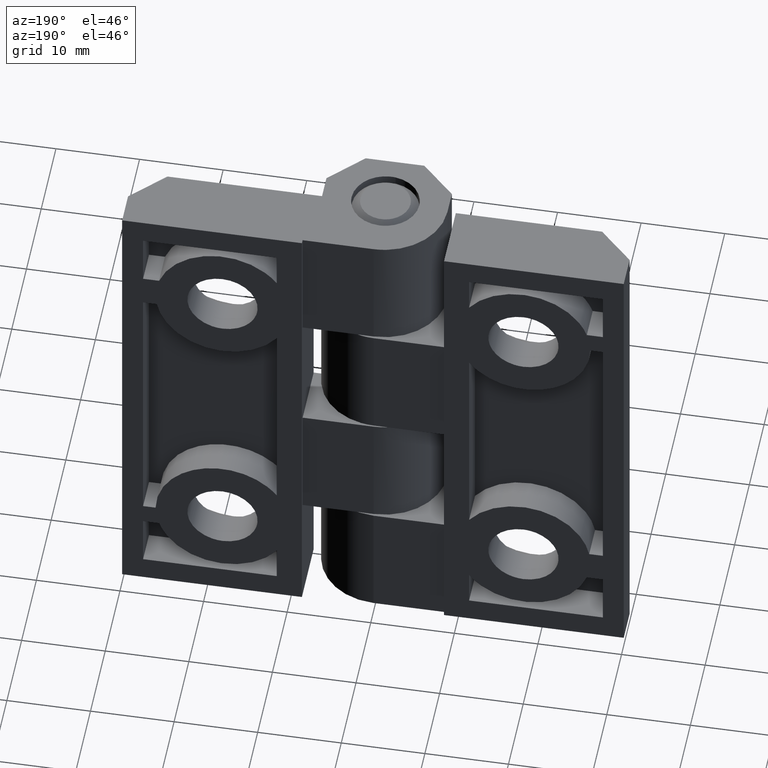
[diagram: clean part render]
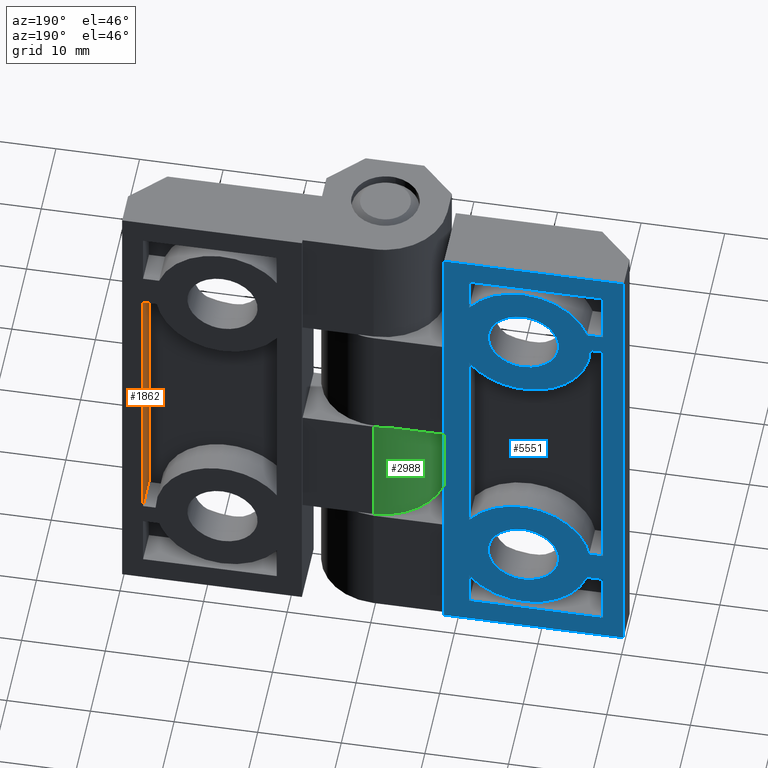
[diagram: same view with three faces highlighted in distinct colors, each labeled with its STEP entity id]
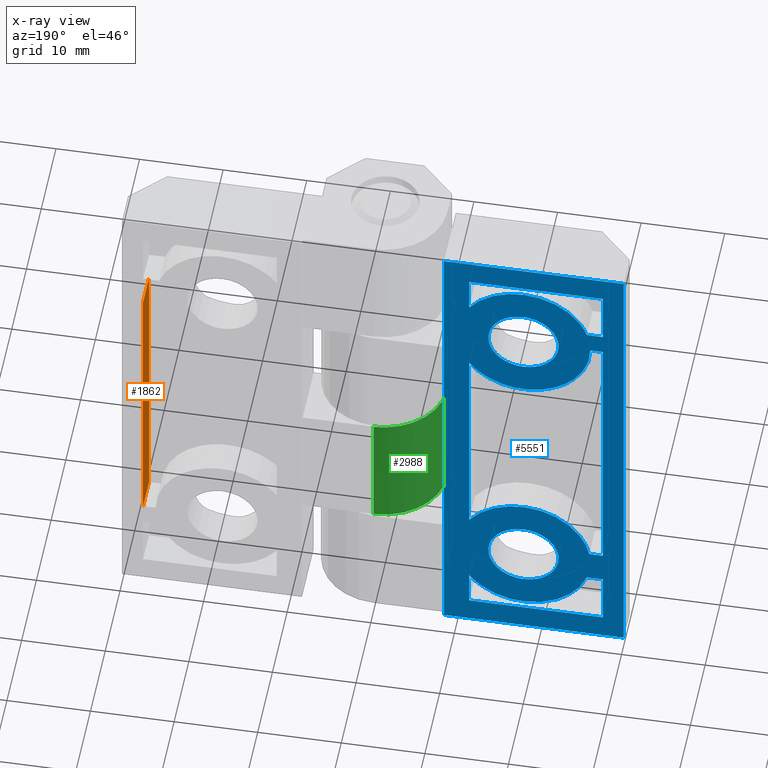
[diagram: x-ray of the same camera — body ghosted, the three highlighted faces saturated]
A machine part, auxiliary view with three faces highlighted in distinct colors.
The next image is the same camera in x-ray (body ghosted, the three faces saturated) — at least one of them is partly hidden behind the body in this view.
Their STEP definitions:

[orange] entity #1862 — the highlighted face is a freeform B-spline surface patch.
#1638=CARTESIAN_POINT('',(27.500002731103400,4.500000403728330,46.548002210911399));
#1639=VERTEX_POINT('',#1638);
#1645=CARTESIAN_POINT('',(27.500002731103400,4.500000403728330,12.000000569969460));
#1646=VERTEX_POINT('',#1645);
#1647=CARTESIAN_POINT('',(27.500002731103400,4.500000403728330,46.548002210911399));
#1648=CARTESIAN_POINT('',(27.500002731103400,4.500000403728330,12.000000569969460));
#1649=QUASI_UNIFORM_CURVE('',1,(#1647,#1648),.UNSPECIFIED.,.F.,.U.);
#1650=EDGE_CURVE('',#1639,#1646,#1649,.T.);
#1824=CARTESIAN_POINT('',(27.500002731103400,8.500000403728341,12.000000569969460));
#1825=VERTEX_POINT('',#1824);
#1833=CARTESIAN_POINT('',(27.500002731103400,4.500000403728330,12.000000569969460));
#1834=CARTESIAN_POINT('',(27.500002731103400,8.500000403728341,12.000000569969460));
#1835=QUASI_UNIFORM_CURVE('',1,(#1833,#1834),.UNSPECIFIED.,.F.,.U.);
#1836=EDGE_CURVE('',#1646,#1825,#1835,.T.);
#1841=CARTESIAN_POINT('',(27.500002731103400,4.300200515161000,48.273672880044202));
#1842=CARTESIAN_POINT('',(27.500002731103400,4.300200515161000,10.274327120887820));
#1843=CARTESIAN_POINT('',(27.500002731103400,8.699799898905019,48.273672880044202));
#1844=CARTESIAN_POINT('',(27.500002731103400,8.699799898905019,10.274327120887820));
#1845=B_SPLINE_SURFACE_WITH_KNOTS('',1,1,((#1841,#1843),(#1842,#1844)),.UNSPECIFIED.,.F.,.F.,.U.,(2,2),(2,2),(0.0,37.999345759156377),(0.0,4.399599383744018),.UNSPECIFIED.);
#1846=CARTESIAN_POINT('',(27.500002731103400,8.500000403728341,46.548002210911399));
#1847=VERTEX_POINT('',#1846);
#1848=CARTESIAN_POINT('',(27.500002731103400,8.500000403728341,46.548002210911399));
#1849=CARTESIAN_POINT('',(27.500002731103400,8.500000403728341,12.000000569969460));
#1850=QUASI_UNIFORM_CURVE('',1,(#1848,#1849),.UNSPECIFIED.,.F.,.U.);
#1851=EDGE_CURVE('',#1847,#1825,#1850,.T.);
#1852=ORIENTED_EDGE('',*,*,#1851,.T.);
#1853=ORIENTED_EDGE('',*,*,#1836,.F.);
#1854=ORIENTED_EDGE('',*,*,#1650,.F.);
#1855=CARTESIAN_POINT('',(27.500002731103400,4.500000403728330,46.548002210911399));
#1856=CARTESIAN_POINT('',(27.500002731103400,8.500000403728341,46.548002210911399));
#1857=QUASI_UNIFORM_CURVE('',1,(#1855,#1856),.UNSPECIFIED.,.F.,.U.);
#1858=EDGE_CURVE('',#1639,#1847,#1857,.T.);
#1859=ORIENTED_EDGE('',*,*,#1858,.T.);
#1860=EDGE_LOOP('',(#1852,#1853,#1854,#1859));
#1861=FACE_OUTER_BOUND('',#1860,.T.);
#1862=ADVANCED_FACE('',(#1861),#1845,.F.);

[blue] entity #5551 — the highlighted face is a freeform B-spline surface patch.
#3131=CARTESIAN_POINT('',(-19.476793066671860,8.500000403728341,51.931804163555412));
#3132=VERTEX_POINT('',#3131);
#3138=CARTESIAN_POINT('',(-17.999998005107098,8.500000403728341,52.200001054443433));
#3139=VERTEX_POINT('',#3138);
#3140=CARTESIAN_POINT('',(-19.476793066671863,8.500000403728341,51.931804163555405));
#3141=CARTESIAN_POINT('',(-18.762748804044932,8.500000403728341,52.200001054443440));
#3142=CARTESIAN_POINT('',(-17.999998005107098,8.500000403728341,52.200001054443433));
#3150=(BOUNDED_CURVE()B_SPLINE_CURVE(2,(#3140,#3141,#3142),.UNSPECIFIED.,.F.,.U.)B_SPLINE_CURVE_WITH_KNOTS((3,3),(0.940284170898521,1.0),.UNSPECIFIED.)CURVE()GEOMETRIC_REPRESENTATION_ITEM()RATIONAL_B_SPLINE_CURVE((0.893499554635290,0.930038554401415,1.0))REPRESENTATION_ITEM(''));
#3151=EDGE_CURVE('',#3132,#3139,#3150,.T.);
#3153=CARTESIAN_POINT('',(-17.999998005107098,8.500000403728341,43.800003505311778));
#3154=VERTEX_POINT('',#3153);
#3155=CARTESIAN_POINT('',(-17.999998005107098,8.500000403728341,52.200001054443433));
#3156=CARTESIAN_POINT('',(-13.799999230541273,8.500000403728341,52.200001054443426));
#3157=CARTESIAN_POINT('',(-13.799999230541280,8.500000403728341,48.000002279877599));
#3158=CARTESIAN_POINT('',(-13.799999230541273,8.500000403728341,43.800003505311778));
#3159=CARTESIAN_POINT('',(-17.999998005107098,8.500000403728341,43.800003505311778));
#3167=(BOUNDED_CURVE()B_SPLINE_CURVE(2,(#3155,#3156,#3157,#3158,#3159),.UNSPECIFIED.,.F.,.U.)B_SPLINE_CURVE_WITH_KNOTS((3,2,3),(0.0,0.250000000000000,0.500000000000000),.UNSPECIFIED.)CURVE()GEOMETRIC_REPRESENTATION_ITEM()RATIONAL_B_SPLINE_CURVE((1.0,0.707106781186547,1.0,0.707106781186547,1.0))REPRESENTATION_ITEM(''));
#3168=EDGE_CURVE('',#3139,#3154,#3167,.T.);
#3170=CARTESIAN_POINT('',(-22.192162935328820,8.500000403728341,47.743598488615532));
#3171=VERTEX_POINT('',#3170);
#3172=CARTESIAN_POINT('',(-17.999998005107098,8.500000403728341,43.800003505311778));
#3173=CARTESIAN_POINT('',(-21.950962333287343,8.500000403728341,43.800003505311778));
#3174=CARTESIAN_POINT('',(-22.192162935328820,8.500000403728341,47.743598488615532));
#3182=(BOUNDED_CURVE()B_SPLINE_CURVE(2,(#3172,#3173,#3174),.UNSPECIFIED.,.F.,.U.)B_SPLINE_CURVE_WITH_KNOTS((3,3),(0.500000000000000,0.739332962239776),.UNSPECIFIED.)CURVE()GEOMETRIC_REPRESENTATION_ITEM()RATIONAL_B_SPLINE_CURVE((1.0,0.719603993285735,0.976072041668502))REPRESENTATION_ITEM(''));
#3183=EDGE_CURVE('',#3154,#3171,#3182,.T.);
#3285=CARTESIAN_POINT('',(-22.192162935328813,8.500000403728341,47.743598488615540));
#3286=CARTESIAN_POINT('',(-22.199996779672926,8.500000403728341,47.871680711437229));
#3287=CARTESIAN_POINT('',(-22.199996779672919,8.500000403728341,48.000002279877599));
#3288=CARTESIAN_POINT('',(-22.199996779672929,8.500000403728341,50.908961733039057));
#3289=CARTESIAN_POINT('',(-19.476793066671863,8.500000403728341,51.931804163555412));
#3297=(BOUNDED_CURVE()B_SPLINE_CURVE(2,(#3285,#3286,#3287,#3288,#3289),.UNSPECIFIED.,.F.,.U.)B_SPLINE_CURVE_WITH_KNOTS((3,2,3),(0.739332962239776,0.750000000000000,0.940284170898520),.UNSPECIFIED.)CURVE()GEOMETRIC_REPRESENTATION_ITEM()RATIONAL_B_SPLINE_CURVE((0.976072041668504,0.987502787900814,1.0,0.777068226785133,0.893499554635289))REPRESENTATION_ITEM(''));
#3298=EDGE_CURVE('',#3171,#3132,#3297,.T.);
#3471=CARTESIAN_POINT('',(-19.476793066671860,8.500000403728341,15.931804163555491));
#3472=VERTEX_POINT('',#3471);
#3478=CARTESIAN_POINT('',(-17.999998005107098,8.500000403728341,16.200001054443511));
#3479=VERTEX_POINT('',#3478);
#3480=CARTESIAN_POINT('',(-19.476793066671863,8.500000403728341,15.931804163555485));
#3481=CARTESIAN_POINT('',(-18.762748804044932,8.500000403728341,16.200001054443504));
#3482=CARTESIAN_POINT('',(-17.999998005107098,8.500000403728341,16.200001054443511));
#3490=(BOUNDED_CURVE()B_SPLINE_CURVE(2,(#3480,#3481,#3482),.UNSPECIFIED.,.F.,.U.)B_SPLINE_CURVE_WITH_KNOTS((3,3),(0.940284170898521,1.0),.UNSPECIFIED.)CURVE()GEOMETRIC_REPRESENTATION_ITEM()RATIONAL_B_SPLINE_CURVE((0.893499554635290,0.930038554401415,1.0))REPRESENTATION_ITEM(''));
#3491=EDGE_CURVE('',#3472,#3479,#3490,.T.);
#3493=CARTESIAN_POINT('',(-17.999998005107098,8.500000403728341,7.800003505311856));
#3494=VERTEX_POINT('',#3493);
#3495=CARTESIAN_POINT('',(-17.999998005107098,8.500000403728341,16.200001054443511));
#3496=CARTESIAN_POINT('',(-13.799999230541273,8.500000403728341,16.200001054443501));
#3497=CARTESIAN_POINT('',(-13.799999230541280,8.500000403728341,12.000002279877680));
#3498=CARTESIAN_POINT('',(-13.799999230541273,8.500000403728341,7.800003505311856));
#3499=CARTESIAN_POINT('',(-17.999998005107098,8.500000403728341,7.800003505311856));
#3507=(BOUNDED_CURVE()B_SPLINE_CURVE(2,(#3495,#3496,#3497,#3498,#3499),.UNSPECIFIED.,.F.,.U.)B_SPLINE_CURVE_WITH_KNOTS((3,2,3),(0.0,0.250000000000000,0.500000000000000),.UNSPECIFIED.)CURVE()GEOMETRIC_REPRESENTATION_ITEM()RATIONAL_B_SPLINE_CURVE((1.0,0.707106781186547,1.0,0.707106781186547,1.0))REPRESENTATION_ITEM(''));
#3508=EDGE_CURVE('',#3479,#3494,#3507,.T.);
#3510=CARTESIAN_POINT('',(-22.192162935328820,8.500000403728343,11.743598488615630));
#3511=VERTEX_POINT('',#3510);
#3512=CARTESIAN_POINT('',(-17.999998005107098,8.500000403728341,7.800003505311856));
#3513=CARTESIAN_POINT('',(-21.950962333287396,8.500000403728341,7.800003505311858));
#3514=CARTESIAN_POINT('',(-22.192162935328824,8.500000403728343,11.743598488615630));
#3522=(BOUNDED_CURVE()B_SPLINE_CURVE(2,(#3512,#3513,#3514),.UNSPECIFIED.,.F.,.U.)B_SPLINE_CURVE_WITH_KNOTS((3,3),(0.500000000000000,0.739332962239778),.UNSPECIFIED.)CURVE()GEOMETRIC_REPRESENTATION_ITEM()RATIONAL_B_SPLINE_CURVE((1.0,0.719603993285732,0.976072041668507))REPRESENTATION_ITEM(''));
#3523=EDGE_CURVE('',#3494,#3511,#3522,.T.);
#3625=CARTESIAN_POINT('',(-22.192162935328820,8.500000403728343,11.743598488615628));
#3626=CARTESIAN_POINT('',(-22.199996779672926,8.500000403728341,11.871680711437307));
#3627=CARTESIAN_POINT('',(-22.199996779672919,8.500000403728341,12.000002279877680));
#3628=CARTESIAN_POINT('',(-22.199996779672926,8.500000403728341,14.908961733039133));
#3629=CARTESIAN_POINT('',(-19.476793066671863,8.500000403728341,15.931804163555485));
#3637=(BOUNDED_CURVE()B_SPLINE_CURVE(2,(#3625,#3626,#3627,#3628,#3629),.UNSPECIFIED.,.F.,.U.)B_SPLINE_CURVE_WITH_KNOTS((3,2,3),(0.739332962239777,0.750000000000000,0.940284170898521),.UNSPECIFIED.)CURVE()GEOMETRIC_REPRESENTATION_ITEM()RATIONAL_B_SPLINE_CURVE((0.976072041668504,0.987502787900814,1.0,0.777068226785133,0.893499554635290))REPRESENTATION_ITEM(''));
#3638=EDGE_CURVE('',#3511,#3472,#3637,.T.);
#4194=CARTESIAN_POINT('',(-25.583382676506950,8.500000403728341,9.452000448945970));
#4195=VERTEX_POINT('',#4194);
#4196=CARTESIAN_POINT('',(-27.499999881256450,8.500000403728341,9.452000448945899));
#4197=VERTEX_POINT('',#4196);
#4198=CARTESIAN_POINT('',(-25.583382676506950,8.500000403728341,9.452000448945970));
#4199=CARTESIAN_POINT('',(-27.499999881256450,8.500000403728341,9.452000448945899));
#4200=QUASI_UNIFORM_CURVE('',1,(#4198,#4199),.UNSPECIFIED.,.F.,.U.);
#4201=EDGE_CURVE('',#4195,#4197,#4200,.T.);
#4231=CARTESIAN_POINT('',(-11.499999121297099,8.500000403728341,7.336310821911829));
#4232=VERTEX_POINT('',#4231);
#4233=CARTESIAN_POINT('',(-25.583382676506950,8.500000403728341,9.452000448945970));
#4234=CARTESIAN_POINT('',(-24.025501573294985,8.500000403728341,4.815419249195304));
#4235=CARTESIAN_POINT('',(-19.188471262651401,8.500000403728341,4.088771791660660));
#4236=CARTESIAN_POINT('',(-14.351440952007833,8.500000403728341,3.362124334126018));
#4237=CARTESIAN_POINT('',(-11.499999121297069,8.500000403728341,7.336310821911803));
#4245=(BOUNDED_CURVE()B_SPLINE_CURVE(2,(#4233,#4234,#4235,#4236,#4237),.UNSPECIFIED.,.F.,.U.)B_SPLINE_CURVE_WITH_KNOTS((3,2,3),(0.0,0.500000000000000,1.0),.UNSPECIFIED.)CURVE()GEOMETRIC_REPRESENTATION_ITEM()RATIONAL_B_SPLINE_CURVE((1.0,0.853167107467893,1.0,0.853167107467893,1.0))REPRESENTATION_ITEM(''));
#4246=EDGE_CURVE('',#4195,#4232,#4245,.T.);
#4263=CARTESIAN_POINT('',(-11.499999121297201,8.500000403728341,3.000000142492375));
#4264=VERTEX_POINT('',#4263);
#4265=CARTESIAN_POINT('',(-11.499999121297201,8.500000403728341,3.000000142492375));
#4266=CARTESIAN_POINT('',(-11.499999121297099,8.500000403728341,7.336310821911829));
#4267=QUASI_UNIFORM_CURVE('',1,(#4265,#4266),.UNSPECIFIED.,.F.,.U.);
#4268=EDGE_CURVE('',#4264,#4232,#4267,.T.);
#4285=CARTESIAN_POINT('',(-27.499999881256450,8.500000403728341,3.000000142492375));
#4286=VERTEX_POINT('',#4285);
#4287=CARTESIAN_POINT('',(-27.499999881256450,8.500000403728341,3.000000142492375));
#4288=CARTESIAN_POINT('',(-11.499999121297201,8.500000403728341,3.000000142492375));
#4289=QUASI_UNIFORM_CURVE('',1,(#4287,#4288),.UNSPECIFIED.,.F.,.U.);
#4290=EDGE_CURVE('',#4286,#4264,#4289,.T.);
#4307=CARTESIAN_POINT('',(-27.499999881256450,8.500000403728341,9.452000448945899));
#4308=CARTESIAN_POINT('',(-27.499999881256450,8.500000403728341,3.000000142492375));
#4309=QUASI_UNIFORM_CURVE('',1,(#4307,#4308),.UNSPECIFIED.,.F.,.U.);
#4310=EDGE_CURVE('',#4197,#4286,#4309,.T.);
#4393=CARTESIAN_POINT('',(-27.499999881256450,8.500000403728341,13.452000638935701));
#4394=VERTEX_POINT('',#4393);
#4395=CARTESIAN_POINT('',(-27.499999881256450,8.500000403728341,48.000002279877712));
#4396=VERTEX_POINT('',#4395);
#4397=CARTESIAN_POINT('',(-27.499999881256450,8.500000403728341,13.452000638935701));
#4398=CARTESIAN_POINT('',(-27.499999881256450,8.500000403728341,48.000002279877712));
#4399=QUASI_UNIFORM_CURVE('',1,(#4397,#4398),.UNSPECIFIED.,.F.,.U.);
#4400=EDGE_CURVE('',#4394,#4396,#4399,.T.);
#4421=CARTESIAN_POINT('',(-25.867127360819300,8.500000403728341,13.452000638935800));
#4422=VERTEX_POINT('',#4421);
#4423=CARTESIAN_POINT('',(-25.867127360819300,8.500000403728341,13.452000638935800));
#4424=CARTESIAN_POINT('',(-27.499999881256450,8.500000403728341,13.452000638935701));
#4425=QUASI_UNIFORM_CURVE('',1,(#4423,#4424),.UNSPECIFIED.,.F.,.U.);
#4426=EDGE_CURVE('',#4422,#4394,#4425,.T.);
#4456=CARTESIAN_POINT('',(-11.499999121297201,8.500000403728341,16.663690318024951));
#4457=VERTEX_POINT('',#4456);
#4458=CARTESIAN_POINT('',(-11.499999121297201,8.500000403728341,16.663690318024951));
#4459=CARTESIAN_POINT('',(-14.583427799131572,8.500000403728341,20.961207614549213));
#4460=CARTESIAN_POINT('',(-19.745277955779169,8.500000403728341,19.807305415255978));
#4461=CARTESIAN_POINT('',(-24.907128112426772,8.500000403728341,18.653403215962740));
#4462=CARTESIAN_POINT('',(-25.867127360819310,8.500000403728341,13.452000638935811));
#4470=(BOUNDED_CURVE()B_SPLINE_CURVE(2,(#4458,#4459,#4460,#4461,#4462),.UNSPECIFIED.,.F.,.U.)B_SPLINE_CURVE_WITH_KNOTS((3,2,3),(0.0,0.500000000000000,1.0),.UNSPECIFIED.)CURVE()GEOMETRIC_REPRESENTATION_ITEM()RATIONAL_B_SPLINE_CURVE((1.0,0.834165630236693,1.0,0.834165630236693,1.0))REPRESENTATION_ITEM(''));
#4471=EDGE_CURVE('',#4457,#4422,#4470,.T.);
#4488=CARTESIAN_POINT('',(-11.499999121296140,8.500000403728341,43.336312531821250));
#4489=VERTEX_POINT('',#4488);
#4490=CARTESIAN_POINT('',(-11.499999121296140,8.500000403728341,43.336312531821250));
#4491=CARTESIAN_POINT('',(-11.499999121297201,8.500000403728341,16.663690318024951));
#4492=QUASI_UNIFORM_CURVE('',1,(#4490,#4491),.UNSPECIFIED.,.F.,.U.);
#4493=EDGE_CURVE('',#4489,#4457,#4492,.T.);
#4523=CARTESIAN_POINT('',(-25.999999810010198,8.500000403728341,48.000002279877712));
#4524=VERTEX_POINT('',#4523);
#4525=CARTESIAN_POINT('',(-25.999999810010220,8.500000403728341,48.000002279877712));
#4526=CARTESIAN_POINT('',(-25.999999810010216,8.500000403728341,42.169460383529668));
#4527=CARTESIAN_POINT('',(-20.449489289157508,8.500000403728341,40.384228812283723));
#4528=CARTESIAN_POINT('',(-14.898978768304795,8.500000403728341,38.598997241037779));
#4529=CARTESIAN_POINT('',(-11.499999121296190,8.500000403728341,43.336312531821278));
#4537=(BOUNDED_CURVE()B_SPLINE_CURVE(2,(#4525,#4526,#4527,#4528,#4529),.UNSPECIFIED.,.F.,.U.)B_SPLINE_CURVE_WITH_KNOTS((3,2,3),(0.0,0.500000000000000,1.0),.UNSPECIFIED.)CURVE()GEOMETRIC_REPRESENTATION_ITEM()RATIONAL_B_SPLINE_CURVE((1.0,0.808141762888108,1.0,0.808141762888108,1.0))REPRESENTATION_ITEM(''));
#4538=EDGE_CURVE('',#4524,#4489,#4537,.T.);
#4555=CARTESIAN_POINT('',(-27.499999881256450,8.500000403728341,48.000002279877712));
#4556=CARTESIAN_POINT('',(-25.999999810010198,8.500000403728341,48.000002279877712));
#4557=QUASI_UNIFORM_CURVE('',1,(#4555,#4556),.UNSPECIFIED.,.F.,.U.);
#4558=EDGE_CURVE('',#4396,#4524,#4557,.T.);
#4624=CARTESIAN_POINT('',(-25.583382676506950,8.500000403728341,50.548002400901197));
#4625=VERTEX_POINT('',#4624);
#4626=CARTESIAN_POINT('',(-27.499999881256450,8.500000403728341,50.548002400901197));
#4627=VERTEX_POINT('',#4626);
#4628=CARTESIAN_POINT('',(-25.583382676506950,8.500000403728341,50.548002400901197));
#4629=CARTESIAN_POINT('',(-27.499999881256450,8.500000403728341,50.548002400901197));
#4630=QUASI_UNIFORM_CURVE('',1,(#4628,#4629),.UNSPECIFIED.,.F.,.U.);
#4631=EDGE_CURVE('',#4625,#4627,#4630,.T.);
#4661=CARTESIAN_POINT('',(-11.499999121297201,8.500000403728341,52.663692027933202));
#4662=VERTEX_POINT('',#4661);
#4663=CARTESIAN_POINT('',(-11.499999121297201,8.500000403728341,52.663692027933202));
#4664=CARTESIAN_POINT('',(-14.351440952006371,8.500000403728341,56.637878515720807));
#4665=CARTESIAN_POINT('',(-19.188471262650559,8.500000403728341,55.911231058186587));
#4666=CARTESIAN_POINT('',(-24.025501573294768,8.500000403728341,55.184583600652374));
#4667=CARTESIAN_POINT('',(-25.583382676506940,8.500000403728341,50.548002400901197));
#4675=(BOUNDED_CURVE()B_SPLINE_CURVE(2,(#4663,#4664,#4665,#4666,#4667),.UNSPECIFIED.,.F.,.U.)B_SPLINE_CURVE_WITH_KNOTS((3,2,3),(0.0,0.500000000000000,1.0),.UNSPECIFIED.)CURVE()GEOMETRIC_REPRESENTATION_ITEM()RATIONAL_B_SPLINE_CURVE((1.0,0.853167107467867,1.0,0.853167107467867,1.0))REPRESENTATION_ITEM(''));
#4676=EDGE_CURVE('',#4662,#4625,#4675,.T.);
#4693=CARTESIAN_POINT('',(-11.499999121297201,8.500000403728341,57.000002707354703));
#4694=VERTEX_POINT('',#4693);
#4695=CARTESIAN_POINT('',(-11.499999121297201,8.500000403728341,57.000002707354703));
#4696=CARTESIAN_POINT('',(-11.499999121297201,8.500000403728341,52.663692027933202));
#4697=QUASI_UNIFORM_CURVE('',1,(#4695,#4696),.UNSPECIFIED.,.F.,.U.);
#4698=EDGE_CURVE('',#4694,#4662,#4697,.T.);
#4715=CARTESIAN_POINT('',(-27.499999881256450,8.500000403728341,57.000002707354703));
#4716=VERTEX_POINT('',#4715);
#4717=CARTESIAN_POINT('',(-27.499999881256450,8.500000403728341,57.000002707354703));
#4718=CARTESIAN_POINT('',(-11.499999121297201,8.500000403728341,57.000002707354703));
#4719=QUASI_UNIFORM_CURVE('',1,(#4717,#4718),.UNSPECIFIED.,.F.,.U.);
#4720=EDGE_CURVE('',#4716,#4694,#4719,.T.);
#4737=CARTESIAN_POINT('',(-27.499999881256450,8.500000403728341,50.548002400901197));
#4738=CARTESIAN_POINT('',(-27.499999881256450,8.500000403728341,57.000002707354703));
#4739=QUASI_UNIFORM_CURVE('',1,(#4737,#4738),.UNSPECIFIED.,.F.,.U.);
#4740=EDGE_CURVE('',#4627,#4716,#4739,.T.);
#5024=CARTESIAN_POINT('',(-30.0,8.500000403728341,0.0));
#5025=VERTEX_POINT('',#5024);
#5031=CARTESIAN_POINT('',(-8.499998978804781,8.500000403728341,0.0));
#5032=VERTEX_POINT('',#5031);
#5033=CARTESIAN_POINT('',(-8.499998978804781,8.500000403728341,0.0));
#5034=CARTESIAN_POINT('',(-30.0,8.500000403728341,0.0));
#5035=QUASI_UNIFORM_CURVE('',1,(#5033,#5034),.UNSPECIFIED.,.F.,.U.);
#5036=EDGE_CURVE('',#5032,#5025,#5035,.T.);
#5123=CARTESIAN_POINT('',(-8.499998978804781,8.500000403728341,60.000002849847100));
#5124=VERTEX_POINT('',#5123);
#5130=CARTESIAN_POINT('',(-30.0,8.500000403728341,60.000002849847100));
#5131=VERTEX_POINT('',#5130);
#5132=CARTESIAN_POINT('',(-8.499998978804781,8.500000403728341,60.000002849847100));
#5133=CARTESIAN_POINT('',(-30.0,8.500000403728341,60.000002849847100));
#5134=QUASI_UNIFORM_CURVE('',1,(#5132,#5133),.UNSPECIFIED.,.F.,.U.);
#5135=EDGE_CURVE('',#5124,#5131,#5134,.T.);
#5164=CARTESIAN_POINT('',(-30.0,8.500000403728341,60.000002849847100));
#5165=CARTESIAN_POINT('',(-30.0,8.500000403728341,0.0));
#5166=QUASI_UNIFORM_CURVE('',1,(#5164,#5165),.UNSPECIFIED.,.F.,.U.);
#5167=EDGE_CURVE('',#5131,#5025,#5166,.T.);
#5195=CARTESIAN_POINT('',(-8.499998978804781,8.500000403728341,60.000002849847100));
#5196=CARTESIAN_POINT('',(-8.499998978804781,8.500000403728341,0.0));
#5197=QUASI_UNIFORM_CURVE('',1,(#5195,#5196),.UNSPECIFIED.,.F.,.U.);
#5198=EDGE_CURVE('',#5124,#5032,#5197,.T.);
#5506=CARTESIAN_POINT('',(-31.073925009337529,8.500000403728341,62.997004002379512));
#5507=CARTESIAN_POINT('',(-31.073925009337529,8.500000403728341,-2.997001688974236));
#5508=CARTESIAN_POINT('',(-7.426073392792288,8.500000403728341,62.997004002379512));
#5509=CARTESIAN_POINT('',(-7.426073392792288,8.500000403728341,-2.997001688974236));
#5510=B_SPLINE_SURFACE_WITH_KNOTS('',1,1,((#5506,#5508),(#5507,#5509)),.UNSPECIFIED.,.F.,.F.,.U.,(2,2),(2,2),(0.0,65.994005691353749),(0.0,23.647851616545239),.UNSPECIFIED.);
#5511=ORIENTED_EDGE('',*,*,#5036,.T.);
#5512=ORIENTED_EDGE('',*,*,#5167,.F.);
#5513=ORIENTED_EDGE('',*,*,#5135,.F.);
#5514=ORIENTED_EDGE('',*,*,#5198,.T.);
#5515=EDGE_LOOP('',(#5511,#5512,#5513,#5514));
#5516=FACE_OUTER_BOUND('',#5515,.T.);
#5517=ORIENTED_EDGE('',*,*,#3168,.F.);
#5518=ORIENTED_EDGE('',*,*,#3151,.F.);
#5519=ORIENTED_EDGE('',*,*,#3298,.F.);
#5520=ORIENTED_EDGE('',*,*,#3183,.F.);
#5521=EDGE_LOOP('',(#5517,#5518,#5519,#5520));
#5522=FACE_BOUND('',#5521,.T.);
#5523=ORIENTED_EDGE('',*,*,#3508,.F.);
#5524=ORIENTED_EDGE('',*,*,#3491,.F.);
#5525=ORIENTED_EDGE('',*,*,#3638,.F.);
#5526=ORIENTED_EDGE('',*,*,#3523,.F.);
#5527=EDGE_LOOP('',(#5523,#5524,#5525,#5526));
#5528=FACE_BOUND('',#5527,.T.);
#5529=ORIENTED_EDGE('',*,*,#4720,.F.);
#5530=ORIENTED_EDGE('',*,*,#4740,.F.);
#5531=ORIENTED_EDGE('',*,*,#4631,.F.);
#5532=ORIENTED_EDGE('',*,*,#4676,.F.);
#5533=ORIENTED_EDGE('',*,*,#4698,.F.);
#5534=EDGE_LOOP('',(#5529,#5530,#5531,#5532,#5533));
#5535=FACE_BOUND('',#5534,.T.);
#5536=ORIENTED_EDGE('',*,*,#4538,.F.);
#5537=ORIENTED_EDGE('',*,*,#4558,.F.);
#5538=ORIENTED_EDGE('',*,*,#4400,.F.);
#5539=ORIENTED_EDGE('',*,*,#4426,.F.);
#5540=ORIENTED_EDGE('',*,*,#4471,.F.);
#5541=ORIENTED_EDGE('',*,*,#4493,.F.);
#5542=EDGE_LOOP('',(#5536,#5537,#5538,#5539,#5540,#5541));
#5543=FACE_BOUND('',#5542,.T.);
#5544=ORIENTED_EDGE('',*,*,#4310,.T.);
#5545=ORIENTED_EDGE('',*,*,#4290,.T.);
#5546=ORIENTED_EDGE('',*,*,#4268,.T.);
#5547=ORIENTED_EDGE('',*,*,#4246,.F.);
#5548=ORIENTED_EDGE('',*,*,#4201,.T.);
#5549=EDGE_LOOP('',(#5544,#5545,#5546,#5547,#5548));
#5550=FACE_BOUND('',#5549,.T.);
#5551=ADVANCED_FACE('',(#5516,#5522,#5528,#5535,#5543,#5550),#5510,.F.);

[green] entity #2988 — the highlighted face is a freeform B-spline surface patch.
#2248=CARTESIAN_POINT('',(0.000001424923497,8.000000379979658,15.100000717211501));
#2249=VERTEX_POINT('',#2248);
#2299=CARTESIAN_POINT('',(-7.499998931307250,0.500000023748837,15.100000717211749));
#2300=VERTEX_POINT('',#2299);
#2306=CARTESIAN_POINT('',(0.000001424923497,8.000000379979664,15.100000717211501));
#2307=CARTESIAN_POINT('',(-7.499998931307383,8.000000379979662,15.100000717211497));
#2308=CARTESIAN_POINT('',(-7.499998931307250,0.500000023748837,15.100000717211749));
#2316=(BOUNDED_CURVE()B_SPLINE_CURVE(2,(#2306,#2307,#2308),.UNSPECIFIED.,.F.,.U.)CURVE()GEOMETRIC_REPRESENTATION_ITEM()QUASI_UNIFORM_CURVE()RATIONAL_B_SPLINE_CURVE((1.0,0.707106781186547,1.0))REPRESENTATION_ITEM(''));
#2317=EDGE_CURVE('',#2249,#2300,#2316,.T.);
#2420=CARTESIAN_POINT('',(0.000001424923497,8.000000379979658,29.900001420173801));
#2421=VERTEX_POINT('',#2420);
#2427=CARTESIAN_POINT('',(-7.499998931307280,0.500000023748837,29.900001420173751));
#2428=VERTEX_POINT('',#2427);
#2429=CARTESIAN_POINT('',(-7.499998931307280,0.500000023748837,29.900001420173751));
#2430=CARTESIAN_POINT('',(-7.499998931307383,8.000000379979662,29.900001420173794));
#2431=CARTESIAN_POINT('',(0.000001424923497,8.000000379979664,29.900001420173801));
#2439=(BOUNDED_CURVE()B_SPLINE_CURVE(2,(#2429,#2430,#2431),.UNSPECIFIED.,.F.,.U.)CURVE()GEOMETRIC_REPRESENTATION_ITEM()QUASI_UNIFORM_CURVE()RATIONAL_B_SPLINE_CURVE((1.0,0.707106781186547,1.0))REPRESENTATION_ITEM(''));
#2440=EDGE_CURVE('',#2428,#2421,#2439,.T.);
#2956=CARTESIAN_POINT('',(-7.499998931307280,0.500000023748837,29.900001420173751));
#2957=CARTESIAN_POINT('',(-7.499998931307250,0.500000023748837,15.100000717211749));
#2958=QUASI_UNIFORM_CURVE('',1,(#2956,#2957),.UNSPECIFIED.,.F.,.U.);
#2959=EDGE_CURVE('',#2428,#2300,#2958,.T.);
#2964=CARTESIAN_POINT('',(0.196328546557593,7.997430317174269,30.270001437747862));
#2965=CARTESIAN_POINT('',(0.196328546557593,7.997430317174269,14.720750699198090));
#2966=CARTESIAN_POINT('',(-7.843681105703071,8.207965379343882,30.270001437747855));
#2967=CARTESIAN_POINT('',(-7.843681105703071,8.207965379343882,14.720750699198097));
#2968=CARTESIAN_POINT('',(-7.492860592832260,0.172854602970201,30.270001437747862));
#2969=CARTESIAN_POINT('',(-7.492860592832260,0.172854602970201,14.720750699198090));
#2977=(BOUNDED_SURFACE()B_SPLINE_SURFACE(1,2,((#2964,#2966,#2968),(#2965,#2967,#2969)),.UNSPECIFIED.,.F.,.F.,.U.)B_SPLINE_SURFACE_WITH_KNOTS((2,2),(3,3),(0.0,15.549250738549770),(0.0,13.044371868402379),.UNSPECIFIED.)GEOMETRIC_REPRESENTATION_ITEM()RATIONAL_B_SPLINE_SURFACE(((1.0,0.681998360062498,1.0),(1.0,0.681998360062498,1.0)))REPRESENTATION_ITEM('')SURFACE());
#2978=CARTESIAN_POINT('',(0.000001424923497,8.000000379979658,29.900001420173801));
#2979=CARTESIAN_POINT('',(0.000001424923497,8.000000379979658,15.100000717211501));
#2980=QUASI_UNIFORM_CURVE('',1,(#2978,#2979),.UNSPECIFIED.,.F.,.U.);
#2981=EDGE_CURVE('',#2421,#2249,#2980,.T.);
#2982=ORIENTED_EDGE('',*,*,#2981,.T.);
#2983=ORIENTED_EDGE('',*,*,#2317,.T.);
#2984=ORIENTED_EDGE('',*,*,#2959,.F.);
#2985=ORIENTED_EDGE('',*,*,#2440,.T.);
#2986=EDGE_LOOP('',(#2982,#2983,#2984,#2985));
#2987=FACE_OUTER_BOUND('',#2986,.T.);
#2988=ADVANCED_FACE('',(#2987),#2977,.T.);